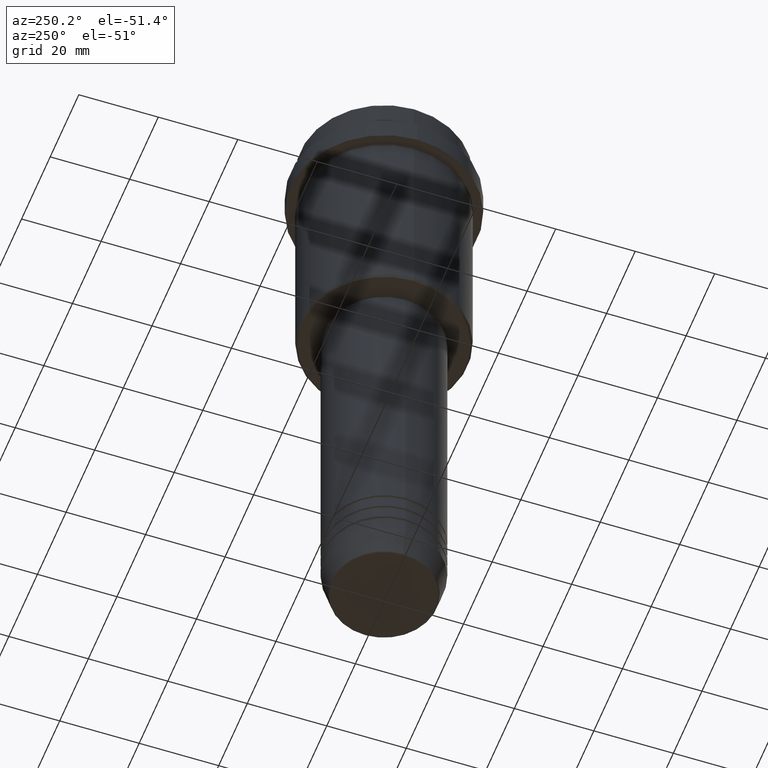
[diagram: clean part render]
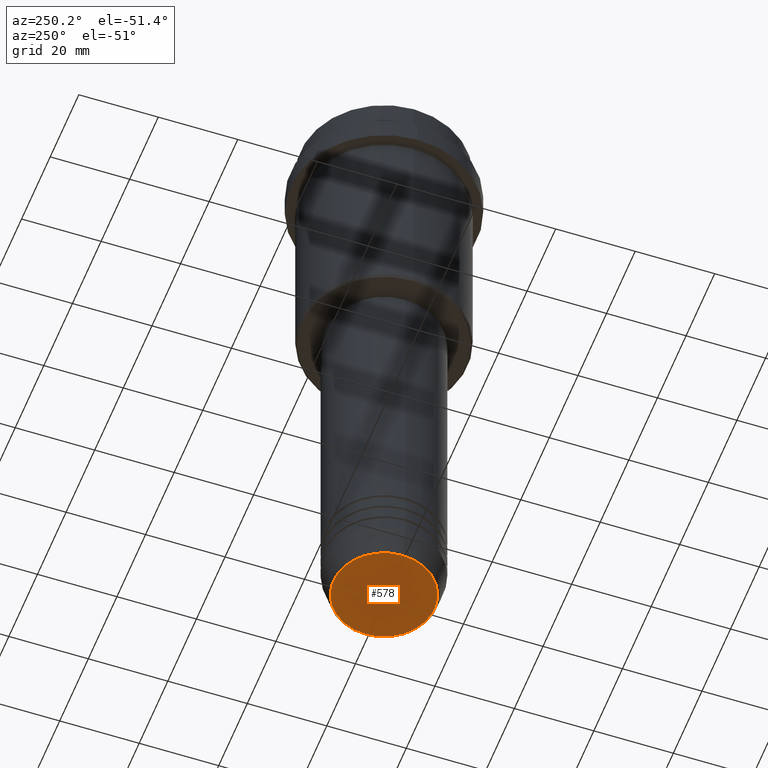
[diagram: same view with one face highlighted and labeled with its STEP entity id]
A machine part, auxiliary view. The second image highlights one B-rep face of the part: STEP entity #578.
In plain terms, the highlighted planar face has unit normal (0, -0, 1).
Its self-contained STEP definition (entity closure, byte-faithful):
#21 = CARTESIAN_POINT ( 'NONE',  ( 12.74069215899265828, 0.000000000000000000, -160.0000000000000000 ) ) ;
#84 = DIRECTION ( 'NONE',  ( 1.000000000000000000, 0.000000000000000000, 0.000000000000000000 ) ) ;
#193 = EDGE_CURVE ( 'NONE', #1285, #1163, #1405, .T. ) ;
#342 = DIRECTION ( 'NONE',  ( 0.000000000000000000, -0.000000000000000000, 1.000000000000000000 ) ) ;
#430 = DIRECTION ( 'NONE',  ( 1.000000000000000000, 0.000000000000000000, 0.000000000000000000 ) ) ;
#578 = ADVANCED_FACE ( 'NONE', ( #918 ), #1081, .F. ) ;
#579 = EDGE_LOOP ( 'NONE', ( #592, #1072 ) ) ;
#591 = DIRECTION ( 'NONE',  ( 0.000000000000000000, 0.000000000000000000, -1.000000000000000000 ) ) ;
#592 = ORIENTED_EDGE ( 'NONE', *, *, #193, .T. ) ;
#599 = AXIS2_PLACEMENT_3D ( 'NONE', #1392, #342, #430 ) ;
#725 = AXIS2_PLACEMENT_3D ( 'NONE', #944, #839, #84 ) ;
#787 = CARTESIAN_POINT ( 'NONE',  ( 0.000000000000000000, 0.000000000000000000, -160.0000000000000000 ) ) ;
#801 = DIRECTION ( 'NONE',  ( 1.000000000000000000, 0.000000000000000000, 0.000000000000000000 ) ) ;
#839 = DIRECTION ( 'NONE',  ( 0.000000000000000000, 0.000000000000000000, -1.000000000000000000 ) ) ;
#918 = FACE_OUTER_BOUND ( 'NONE', #579, .T. ) ;
#944 = CARTESIAN_POINT ( 'NONE',  ( 0.000000000000000000, 0.000000000000000000, -160.0000000000000000 ) ) ;
#1072 = ORIENTED_EDGE ( 'NONE', *, *, #1270, .T. ) ;
#1081 = PLANE ( 'NONE',  #599 ) ;
#1090 = CIRCLE ( 'NONE', #1249, 12.74069215899265828 ) ;
#1163 = VERTEX_POINT ( 'NONE', #1308 ) ;
#1249 = AXIS2_PLACEMENT_3D ( 'NONE', #787, #591, #801 ) ;
#1270 = EDGE_CURVE ( 'NONE', #1163, #1285, #1090, .T. ) ;
#1285 = VERTEX_POINT ( 'NONE', #21 ) ;
#1308 = CARTESIAN_POINT ( 'NONE',  ( -12.74069215899265828, 1.589857736427681035E-15, -160.0000000000000000 ) ) ;
#1392 = CARTESIAN_POINT ( 'NONE',  ( 0.000000000000000000, 0.000000000000000000, -160.0000000000000000 ) ) ;
#1405 = CIRCLE ( 'NONE', #725, 12.74069215899265828 ) ;